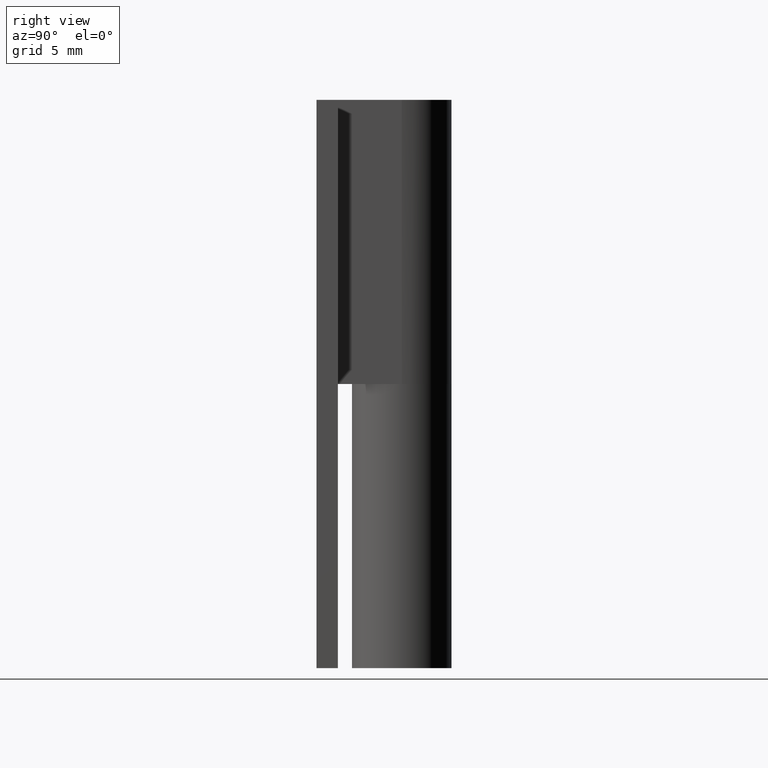
[diagram: clean part render]
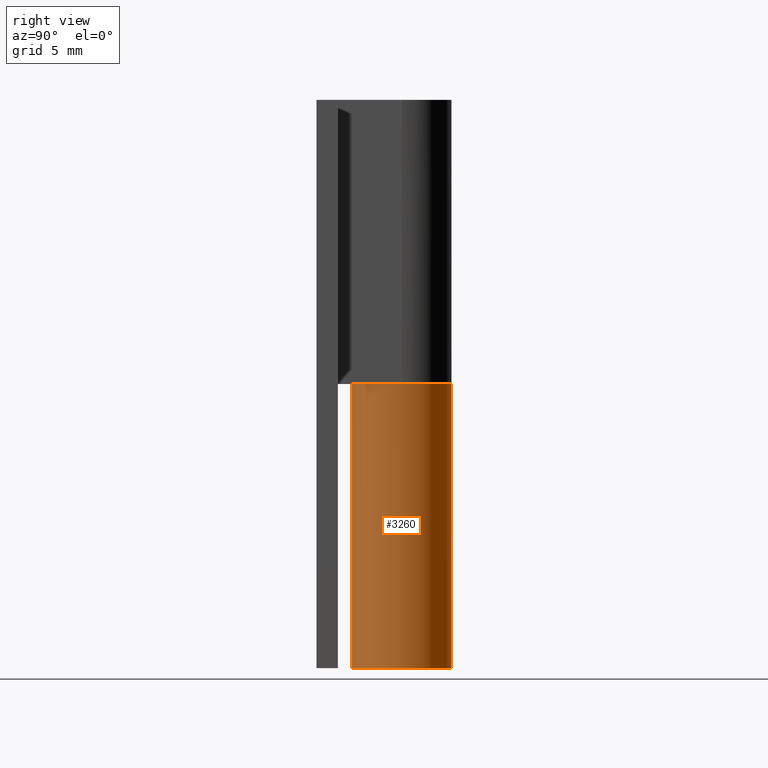
[diagram: same view with one face highlighted and labeled with its STEP entity id]
A machine part, right view. The second image highlights one B-rep face of the part: STEP entity #3260.
In plain terms, the highlighted face is a freeform B-spline surface patch.
Its self-contained STEP definition (entity closure, byte-faithful):
#2950=CARTESIAN_POINT('',(0.0,3.499999999999950,20.0));
#2951=VERTEX_POINT('',#2950);
#2992=CARTESIAN_POINT('',(-2.906458325866725,1.950000000000000,20.0));
#2993=VERTEX_POINT('',#2992);
#2999=CARTESIAN_POINT('',(0.0,3.499999999999950,20.0));
#3000=CARTESIAN_POINT('',(2.732759340469793,3.500000000000000,20.000000000000004));
#3001=CARTESIAN_POINT('',(3.395511382448716,0.848824158269077,20.0));
#3002=CARTESIAN_POINT('',(4.058263424427640,-1.802351683461844,20.000000000000004));
#3003=CARTESIAN_POINT('',(1.646966909200060,-3.088284313336452,20.0));
#3004=CARTESIAN_POINT('',(-0.764329606027519,-4.374216943211060,20.000000000000004));
#3005=CARTESIAN_POINT('',(-2.596662639363706,-2.346772919848172,20.0));
#3006=CARTESIAN_POINT('',(-4.428995672699895,-0.319328896485282,20.000000000000004));
#3007=CARTESIAN_POINT('',(-2.906458325866723,1.950000000000001,20.0));
#3015=(BOUNDED_CURVE()B_SPLINE_CURVE(2,(#2999,#3000,#3001,#3002,#3003,#3004,#3005,#3006,#3007),.UNSPECIFIED.,.F.,.U.)B_SPLINE_CURVE_WITH_KNOTS((3,2,2,2,3),(0.0,0.250000000000000,0.500000000000000,0.750000000000000,1.0),.UNSPECIFIED.)CURVE()GEOMETRIC_REPRESENTATION_ITEM()RATIONAL_B_SPLINE_CURVE((1.0,0.788200858942972,1.0,0.788200858942972,1.0,0.788200858942972,1.0,0.788200858942972,1.0))REPRESENTATION_ITEM(''));
#3016=EDGE_CURVE('',#2951,#2993,#3015,.T.);
#3063=CARTESIAN_POINT('',(0.0,3.500000000000000,0.0));
#3064=VERTEX_POINT('',#3063);
#3070=CARTESIAN_POINT('',(-2.906458325866725,1.950000000000000,0.0));
#3071=VERTEX_POINT('',#3070);
#3072=CARTESIAN_POINT('',(0.0,3.500000000000000,0.0));
#3073=CARTESIAN_POINT('',(2.732759340469793,3.500000000000000,0.0));
#3074=CARTESIAN_POINT('',(3.395511382448716,0.848824158269077,0.0));
#3075=CARTESIAN_POINT('',(4.058263424427640,-1.802351683461844,0.0));
#3076=CARTESIAN_POINT('',(1.646966909200060,-3.088284313336452,0.0));
#3077=CARTESIAN_POINT('',(-0.764329606027519,-4.374216943211060,0.0));
#3078=CARTESIAN_POINT('',(-2.596662639363706,-2.346772919848172,0.0));
#3079=CARTESIAN_POINT('',(-4.428995672699895,-0.319328896485282,0.0));
#3080=CARTESIAN_POINT('',(-2.906458325866723,1.950000000000001,0.0));
#3088=(BOUNDED_CURVE()B_SPLINE_CURVE(2,(#3072,#3073,#3074,#3075,#3076,#3077,#3078,#3079,#3080),.UNSPECIFIED.,.F.,.U.)B_SPLINE_CURVE_WITH_KNOTS((3,2,2,2,3),(0.0,0.250000000000000,0.500000000000000,0.750000000000000,1.0),.UNSPECIFIED.)CURVE()GEOMETRIC_REPRESENTATION_ITEM()RATIONAL_B_SPLINE_CURVE((1.0,0.788200858942972,1.0,0.788200858942972,1.0,0.788200858942972,1.0,0.788200858942972,1.0))REPRESENTATION_ITEM(''));
#3089=EDGE_CURVE('',#3064,#3071,#3088,.T.);
#3217=CARTESIAN_POINT('',(-2.906458325866725,1.950000000000000,20.0));
#3218=CARTESIAN_POINT('',(-2.906458325866725,1.950000000000000,0.0));
#3219=QUASI_UNIFORM_CURVE('',1,(#3217,#3218),.UNSPECIFIED.,.F.,.U.);
#3220=EDGE_CURVE('',#2993,#3071,#3219,.T.);
#3228=CARTESIAN_POINT('',(-2.849404314247117,2.032460344988288,20.500000000000000));
#3229=CARTESIAN_POINT('',(-2.849404314247117,2.032460344988288,-0.512500000000003));
#3230=CARTESIAN_POINT('',(-5.419869493007912,-1.571198928386221,20.499999999999996));
#3231=CARTESIAN_POINT('',(-5.419869493007912,-1.571198928386221,-0.512500000000003));
#3232=CARTESIAN_POINT('',(-1.320557256320388,-3.241315864395131,20.500000000000000));
#3233=CARTESIAN_POINT('',(-1.320557256320388,-3.241315864395131,-0.512500000000003));
#3234=CARTESIAN_POINT('',(2.778754980367134,-4.911432800404040,20.499999999999996));
#3235=CARTESIAN_POINT('',(2.778754980367134,-4.911432800404040,-0.512500000000003));
#3236=CARTESIAN_POINT('',(3.458487237310264,-0.537462584150751,20.500000000000000));
#3237=CARTESIAN_POINT('',(3.458487237310264,-0.537462584150751,-0.512500000000003));
#3238=CARTESIAN_POINT('',(4.138219494253393,3.836507632102540,20.499999999999996));
#3239=CARTESIAN_POINT('',(4.138219494253393,3.836507632102540,-0.512500000000003));
#3240=CARTESIAN_POINT('',(-0.274606835047458,3.489210668065946,20.500000000000000));
#3241=CARTESIAN_POINT('',(-0.274606835047458,3.489210668065946,-0.512500000000003));
#3249=(BOUNDED_SURFACE()B_SPLINE_SURFACE(1,2,((#3228,#3230,#3232,#3234,#3236,#3238,#3240),(#3229,#3231,#3233,#3235,#3237,#3239,#3241)),.UNSPECIFIED.,.F.,.F.,.U.)B_SPLINE_SURFACE_WITH_KNOTS((2,2),(3,2,2,3),(0.0,21.012500000000010),(0.0,6.777915536387797,13.555831072775600,20.333746609163391),.UNSPECIFIED.)GEOMETRIC_REPRESENTATION_ITEM()RATIONAL_B_SPLINE_SURFACE(((1.0,0.620235491268260,1.0,0.620235491268260,1.0,0.620235491268260,1.0),(1.0,0.620235491268260,1.0,0.620235491268260,1.0,0.620235491268260,1.0)))REPRESENTATION_ITEM('')SURFACE());
#3250=ORIENTED_EDGE('',*,*,#3016,.T.);
#3251=ORIENTED_EDGE('',*,*,#3220,.T.);
#3252=ORIENTED_EDGE('',*,*,#3089,.F.);
#3253=CARTESIAN_POINT('',(0.0,3.499999999999950,20.0));
#3254=CARTESIAN_POINT('',(0.0,3.500000000000000,0.0));
#3255=QUASI_UNIFORM_CURVE('',1,(#3253,#3254),.UNSPECIFIED.,.F.,.U.);
#3256=EDGE_CURVE('',#2951,#3064,#3255,.T.);
#3257=ORIENTED_EDGE('',*,*,#3256,.F.);
#3258=EDGE_LOOP('',(#3250,#3251,#3252,#3257));
#3259=FACE_OUTER_BOUND('',#3258,.T.);
#3260=ADVANCED_FACE('',(#3259),#3249,.T.);